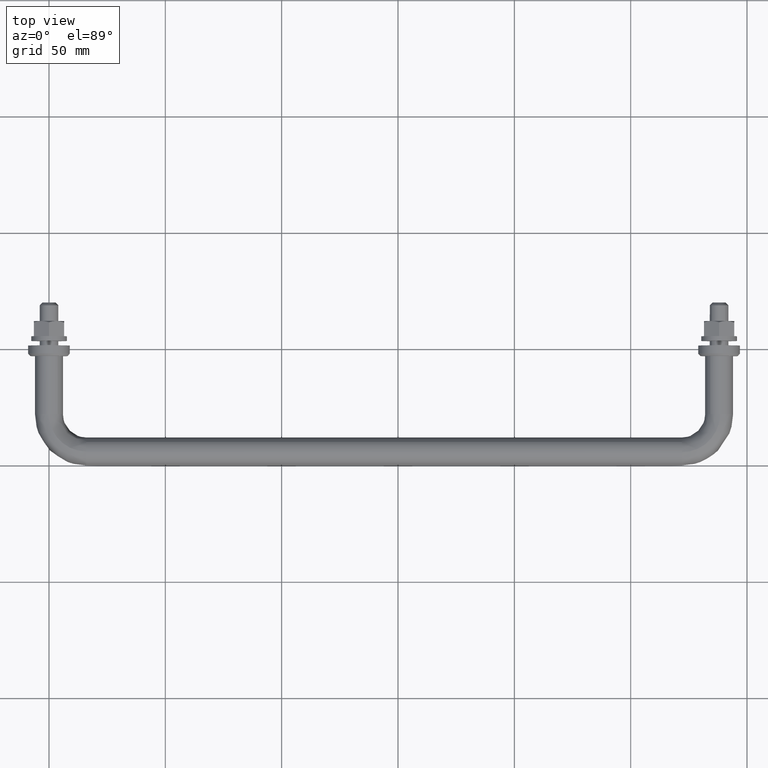
[diagram: clean part render]
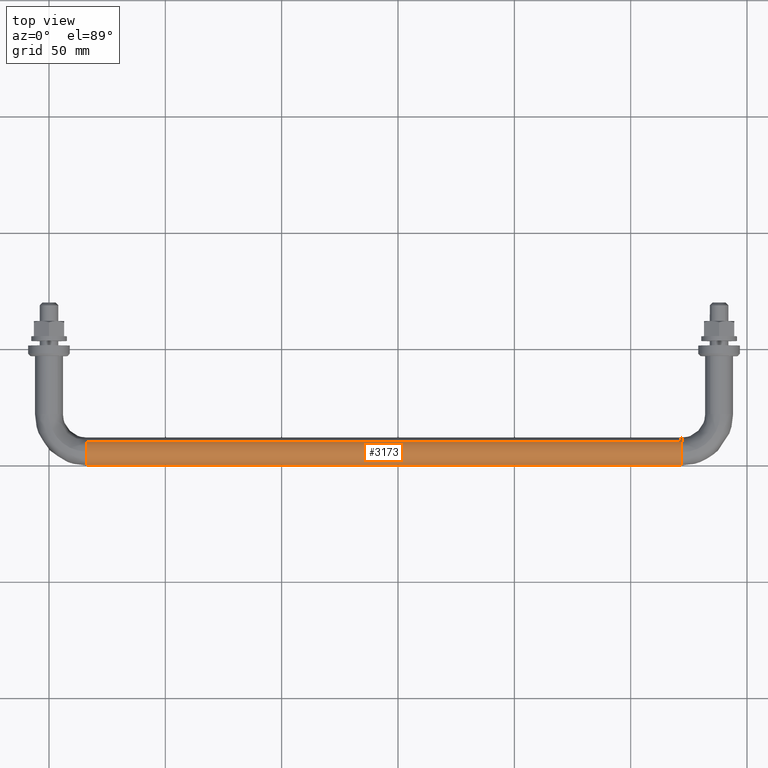
[diagram: same view with one face highlighted and labeled with its STEP entity id]
A machine part, top view. The second image highlights one B-rep face of the part: STEP entity #3173.
In plain terms, the highlighted face is a freeform B-spline surface patch.
Its self-contained STEP definition (entity closure, byte-faithful):
#2952=CARTESIAN_POINT('',(272.0,-48.467994806515627,-4.004625127143502));
#2953=VERTEX_POINT('',#2952);
#2969=CARTESIAN_POINT('',(16.0,-48.467994806515662,-4.004625127143493));
#2970=VERTEX_POINT('',#2969);
#2971=CARTESIAN_POINT('',(16.0,-48.467994806515662,-4.004625127143493));
#2972=CARTESIAN_POINT('',(272.0,-48.467994806515627,-4.004625127143502));
#2973=QUASI_UNIFORM_CURVE('',1,(#2971,#2972),.UNSPECIFIED.,.F.,.U.);
#2974=EDGE_CURVE('',#2970,#2953,#2973,.T.);
#3008=CARTESIAN_POINT('',(16.0,-40.024279710704747,4.493734324733278));
#3009=VERTEX_POINT('',#3008);
#3023=CARTESIAN_POINT('',(272.0,-40.024279710704718,4.493734324733270));
#3024=VERTEX_POINT('',#3023);
#3025=CARTESIAN_POINT('',(16.0,-40.024279710704747,4.493734324733278));
#3026=CARTESIAN_POINT('',(272.0,-40.024279710704718,4.493734324733270));
#3027=QUASI_UNIFORM_CURVE('',1,(#3025,#3026),.UNSPECIFIED.,.F.,.U.);
#3028=EDGE_CURVE('',#3009,#3024,#3027,.T.);
#3061=CARTESIAN_POINT('',(9.599999997004861,-40.024279710705578,4.493734324734011));
#3062=CARTESIAN_POINT('',(9.599999997004861,-44.518014035439599,8.469454614028436));
#3063=CARTESIAN_POINT('',(9.599999997004861,-48.493734324734007,3.975720289294424));
#3064=CARTESIAN_POINT('',(9.599999997004860,-52.034080247159984,-0.025912832602382));
#3065=CARTESIAN_POINT('',(9.599999997004861,-48.467994806516181,-4.004625127142923));
#3066=CARTESIAN_POINT('',(278.560000003448520,-40.024279710705542,4.493734324734011));
#3067=CARTESIAN_POINT('',(278.560000003448580,-44.518014035439549,8.469454614028436));
#3068=CARTESIAN_POINT('',(278.560000003448520,-48.493734324733978,3.975720289294424));
#3069=CARTESIAN_POINT('',(278.560000003448520,-52.034080247159956,-0.025912832602382));
#3070=CARTESIAN_POINT('',(278.560000003448520,-48.467994806516131,-4.004625127142923));
#3078=(BOUNDED_SURFACE()B_SPLINE_SURFACE(2,1,((#3061,#3066),(#3062,#3067),(#3063,#3068),(#3064,#3069),(#3065,#3070)),.UNSPECIFIED.,.F.,.F.,.U.)B_SPLINE_SURFACE_WITH_KNOTS((3,2,3),(2,2),(0.0,9.941125496954280,19.086960954152222),(0.0,268.960000006443690),.UNSPECIFIED.)GEOMETRIC_REPRESENTATION_ITEM()RATIONAL_B_SPLINE_SURFACE(((1.0,1.0),(0.707106781186548,0.707106781186548),(1.0,1.0),(0.730538238691624,0.730538238691624),(0.956886118190660,0.956886118190660)))REPRESENTATION_ITEM('')SURFACE());
#3079=CARTESIAN_POINT('',(272.0,-49.999999999999993,0.0));
#3080=VERTEX_POINT('',#3079);
#3081=CARTESIAN_POINT('',(272.000000000000060,-48.467994806515641,-4.004625127143502));
#3082=CARTESIAN_POINT('',(271.999999999999940,-50.0,-2.295353714534703));
#3083=CARTESIAN_POINT('',(272.0,-49.999999999999993,0.0));
#3091=(BOUNDED_CURVE()B_SPLINE_CURVE(2,(#3081,#3082,#3083),.UNSPECIFIED.,.F.,.U.)B_SPLINE_CURVE_WITH_KNOTS((3,3),(0.383245959685833,0.500000000000000),.UNSPECIFIED.)CURVE()GEOMETRIC_REPRESENTATION_ITEM()RATIONAL_B_SPLINE_CURVE((0.854190687351881,0.863214133291632,1.0))REPRESENTATION_ITEM(''));
#3092=EDGE_CURVE('',#2953,#3080,#3091,.T.);
#3093=ORIENTED_EDGE('',*,*,#3092,.T.);
#3094=CARTESIAN_POINT('',(272.000000003291400,-44.418399524233124,5.985394042009387));
#3095=VERTEX_POINT('',#3094);
#3096=CARTESIAN_POINT('',(272.0,-49.999999999999993,0.0));
#3097=CARTESIAN_POINT('',(272.0,-49.999999999999986,5.595221055898364));
#3098=CARTESIAN_POINT('',(272.000000003291400,-44.418399524233124,5.985394042009387));
#3106=(BOUNDED_CURVE()B_SPLINE_CURVE(2,(#3096,#3097,#3098),.UNSPECIFIED.,.F.,.U.)B_SPLINE_CURVE_WITH_KNOTS((3,3),(0.500000000000000,0.737833685685740),.UNSPECIFIED.)CURVE()GEOMETRIC_REPRESENTATION_ITEM()RATIONAL_B_SPLINE_CURVE((1.0,0.721360505028947,0.972879874590524))REPRESENTATION_ITEM(''));
#3107=EDGE_CURVE('',#3080,#3095,#3106,.T.);
#3108=ORIENTED_EDGE('',*,*,#3107,.T.);
#3109=CARTESIAN_POINT('',(272.000000003291290,-44.418399524233124,5.985394042009387));
#3110=CARTESIAN_POINT('',(272.000000000000110,-44.209454710082873,6.0));
#3111=CARTESIAN_POINT('',(272.0,-44.0,6.0));
#3112=CARTESIAN_POINT('',(272.000000000000060,-41.726803347826824,6.000000000000001));
#3113=CARTESIAN_POINT('',(272.000000000000060,-40.024279710704718,4.493734324733269));
#3121=(BOUNDED_CURVE()B_SPLINE_CURVE(2,(#3109,#3110,#3111,#3112,#3113),.UNSPECIFIED.,.F.,.U.)B_SPLINE_CURVE_WITH_KNOTS((3,2,3),(0.737833685685739,0.750000000000000,0.865779888059629),.UNSPECIFIED.)CURVE()GEOMETRIC_REPRESENTATION_ITEM()RATIONAL_B_SPLINE_CURVE((0.972879874590522,0.985746276157600,1.0,0.864355423649416,0.854350158224964))REPRESENTATION_ITEM(''));
#3122=EDGE_CURVE('',#3095,#3024,#3121,.T.);
#3123=ORIENTED_EDGE('',*,*,#3122,.T.);
#3124=ORIENTED_EDGE('',*,*,#3028,.F.);
#3125=CARTESIAN_POINT('',(15.999999998300160,-44.075396249737437,5.999526265091729));
#3126=VERTEX_POINT('',#3125);
#3127=CARTESIAN_POINT('',(15.999999998300163,-44.075396249737437,5.999526265091729));
#3128=CARTESIAN_POINT('',(16.000000000000004,-44.037699618389894,6.0));
#3129=CARTESIAN_POINT('',(16.0,-44.0,6.0));
#3130=CARTESIAN_POINT('',(15.999999999999996,-41.726803347826824,6.000000000000001));
#3131=CARTESIAN_POINT('',(16.0,-40.024279710704754,4.493734324733278));
#3139=(BOUNDED_CURVE()B_SPLINE_CURVE(2,(#3127,#3128,#3129,#3130,#3131),.UNSPECIFIED.,.F.,.U.)B_SPLINE_CURVE_WITH_KNOTS((3,2,3),(0.747784295309819,0.750000000000000,0.865779888059628),.UNSPECIFIED.)CURVE()GEOMETRIC_REPRESENTATION_ITEM()RATIONAL_B_SPLINE_CURVE((0.994854294235636,0.997404140485412,1.0,0.864355423649417,0.854350158224964))REPRESENTATION_ITEM(''));
#3140=EDGE_CURVE('',#3126,#3009,#3139,.T.);
#3141=ORIENTED_EDGE('',*,*,#3140,.F.);
#3142=CARTESIAN_POINT('',(16.0,-49.999999999999993,0.0));
#3143=VERTEX_POINT('',#3142);
#3144=CARTESIAN_POINT('',(16.0,-49.999999999999993,0.0));
#3145=CARTESIAN_POINT('',(16.000000000000004,-49.999999999999986,5.925071558826640));
#3146=CARTESIAN_POINT('',(15.999999998300162,-44.075396249737437,5.999526265091729));
#3154=(BOUNDED_CURVE()B_SPLINE_CURVE(2,(#3144,#3145,#3146),.UNSPECIFIED.,.F.,.U.)B_SPLINE_CURVE_WITH_KNOTS((3,3),(0.500000000000000,0.747784295309819),.UNSPECIFIED.)CURVE()GEOMETRIC_REPRESENTATION_ITEM()RATIONAL_B_SPLINE_CURVE((1.0,0.709702640701137,0.994854294235634))REPRESENTATION_ITEM(''));
#3155=EDGE_CURVE('',#3143,#3126,#3154,.T.);
#3156=ORIENTED_EDGE('',*,*,#3155,.F.);
#3157=CARTESIAN_POINT('',(16.000000000000007,-48.467994806515662,-4.004625127143493));
#3158=CARTESIAN_POINT('',(15.999999999999996,-50.0,-2.295353714534689));
#3159=CARTESIAN_POINT('',(16.0,-49.999999999999993,0.0));
#3167=(BOUNDED_CURVE()B_SPLINE_CURVE(2,(#3157,#3158,#3159),.UNSPECIFIED.,.F.,.U.)B_SPLINE_CURVE_WITH_KNOTS((3,3),(0.383245959685834,0.500000000000000),.UNSPECIFIED.)CURVE()GEOMETRIC_REPRESENTATION_ITEM()RATIONAL_B_SPLINE_CURVE((0.854190687351881,0.863214133291633,1.0))REPRESENTATION_ITEM(''));
#3168=EDGE_CURVE('',#2970,#3143,#3167,.T.);
#3169=ORIENTED_EDGE('',*,*,#3168,.F.);
#3170=ORIENTED_EDGE('',*,*,#2974,.T.);
#3171=EDGE_LOOP('',(#3093,#3108,#3123,#3124,#3141,#3156,#3169,#3170));
#3172=FACE_OUTER_BOUND('',#3171,.T.);
#3173=ADVANCED_FACE('',(#3172),#3078,.T.);